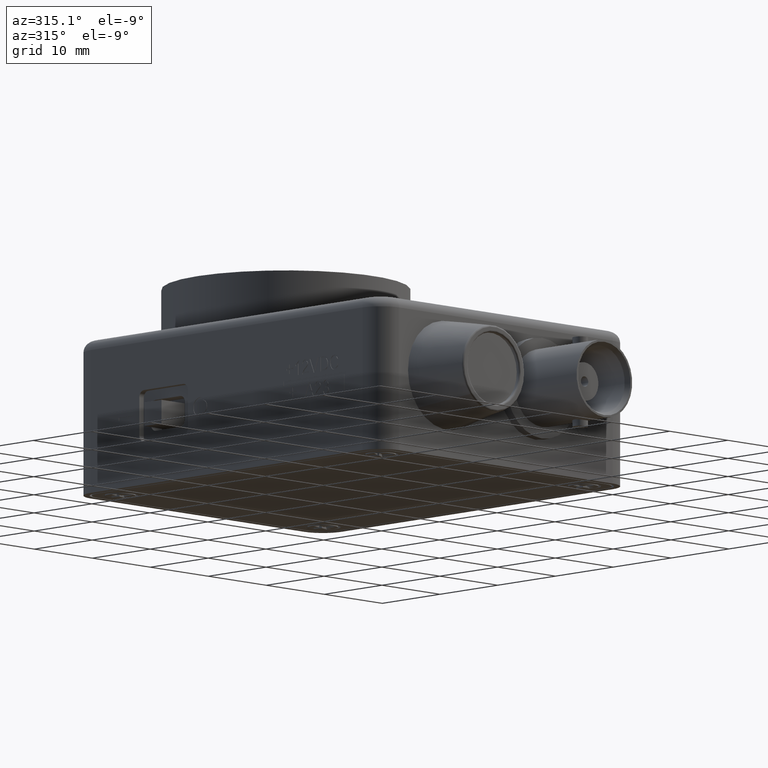
[diagram: clean part render]
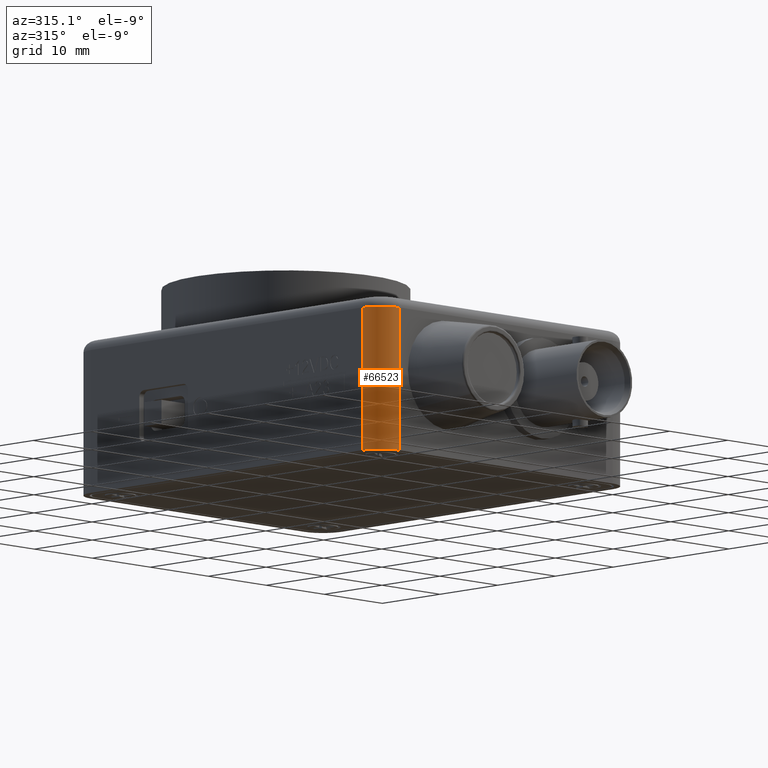
[diagram: same view with one face highlighted and labeled with its STEP entity id]
A machine part, auxiliary view. The second image highlights one B-rep face of the part: STEP entity #66523.
In plain terms, the highlighted cylindrical surface (edge-blend (fillet) strip) has radius 3.175 mm, axis along (0, 0, -1).
Its self-contained STEP definition (entity closure, byte-faithful):
#11525 = CARTESIAN_POINT ( 'NONE',  ( 0.1249999999999999900, 0.0000000000000000000, 0.0000000000000000000 ) ) ;
#11776 = DIRECTION ( 'NONE',  ( 0.0000000000000000000, 0.0000000000000000000, -1.000000000000000000 ) ) ;
#11777 = VECTOR ( 'NONE', #11776, 39.37007874015748100 ) ;
#11778 = CARTESIAN_POINT ( 'NONE',  ( 0.1249999999999999900, 0.0000000000000000000, 0.7500000000000001100 ) ) ;
#11779 = LINE ( 'NONE', #11778, #11777 ) ;
#11780 = CARTESIAN_POINT ( 'NONE',  ( 0.1249999999999999900, 0.0000000000000000000, 0.6950000000000000600 ) ) ;
#12639 = DIRECTION ( 'NONE',  ( 0.0000000000000000000, 0.0000000000000000000, 1.000000000000000000 ) ) ;
#12640 = VECTOR ( 'NONE', #12639, 39.37007874015748100 ) ;
#12641 = CARTESIAN_POINT ( 'NONE',  ( 0.0000000000000000000, 0.1249999999999999900, 0.7500000000000001100 ) ) ;
#12642 = LINE ( 'NONE', #12641, #12640 ) ;
#12696 = CARTESIAN_POINT ( 'NONE',  ( 0.0000000000000000000, 0.1249999999999999900, 0.6950000000000000600 ) ) ;
#12697 = CARTESIAN_POINT ( 'NONE',  ( 0.0000000000000000000, 0.1249999999999999900, 0.0000000000000000000 ) ) ;
#14080 = FACE_OUTER_BOUND ( 'NONE', #66524, .T. ) ;
#14113 = DIRECTION ( 'NONE',  ( -1.000000000000000000, 0.0000000000000000000, 0.0000000000000000000 ) ) ;
#14114 = DIRECTION ( 'NONE',  ( 0.0000000000000000000, 0.0000000000000000000, -1.000000000000000000 ) ) ;
#14115 = AXIS2_PLACEMENT_3D ( 'NONE', #14119, #14114, #14113 ) ;
#14116 = CYLINDRICAL_SURFACE ( 'NONE', #14115, 0.1250000000000000000 ) ;
#14119 = CARTESIAN_POINT ( 'NONE',  ( 0.1249999999999999900, 0.1249999999999999900, 0.7500000000000001100 ) ) ;
#14130 = DIRECTION ( 'NONE',  ( -1.000000000000000000, 0.0000000000000000000, 0.0000000000000000000 ) ) ;
#14131 = DIRECTION ( 'NONE',  ( 0.0000000000000000000, 0.0000000000000000000, -1.000000000000000000 ) ) ;
#14132 = CARTESIAN_POINT ( 'NONE',  ( 0.1249999999999999900, 0.1249999999999999900, 0.0000000000000000000 ) ) ;
#14133 = AXIS2_PLACEMENT_3D ( 'NONE', #14132, #14131, #14130 ) ;
#14134 = CIRCLE ( 'NONE', #14133, 0.1250000000000000000 ) ;
#14271 = DIRECTION ( 'NONE',  ( -1.000000000000000000, 0.0000000000000000000, 0.0000000000000000000 ) ) ;
#14272 = DIRECTION ( 'NONE',  ( 0.0000000000000000000, 0.0000000000000000000, -1.000000000000000000 ) ) ;
#14273 = CARTESIAN_POINT ( 'NONE',  ( 0.1249999999999999900, 0.1249999999999999900, 0.6950000000000000600 ) ) ;
#14274 = AXIS2_PLACEMENT_3D ( 'NONE', #14273, #14272, #14271 ) ;
#14275 = CIRCLE ( 'NONE', #14274, 0.1250000000000000000 ) ;
#65061 = VERTEX_POINT ( 'NONE', #11525 ) ;
#65188 = VERTEX_POINT ( 'NONE', #11780 ) ;
#65190 = EDGE_CURVE ( 'NONE', #65188, #65061, #11779, .T. ) ;
#65688 = EDGE_CURVE ( 'NONE', #65701, #65703, #12642, .T. ) ;
#65701 = VERTEX_POINT ( 'NONE', #12697 ) ;
#65703 = VERTEX_POINT ( 'NONE', #12696 ) ;
#66509 = ORIENTED_EDGE ( 'NONE', *, *, #65190, .F. ) ;
#66523 = ADVANCED_FACE ( 'NONE', ( #14080 ), #14116, .T. ) ;
#66524 = EDGE_LOOP ( 'NONE', ( #66509, #66525, #66616, #66526 ) ) ;
#66525 = ORIENTED_EDGE ( 'NONE', *, *, #66614, .T. ) ;
#66526 = ORIENTED_EDGE ( 'NONE', *, *, #66540, .F. ) ;
#66540 = EDGE_CURVE ( 'NONE', #65061, #65701, #14134, .T. ) ;
#66614 = EDGE_CURVE ( 'NONE', #65188, #65703, #14275, .T. ) ;
#66616 = ORIENTED_EDGE ( 'NONE', *, *, #65688, .F. ) ;